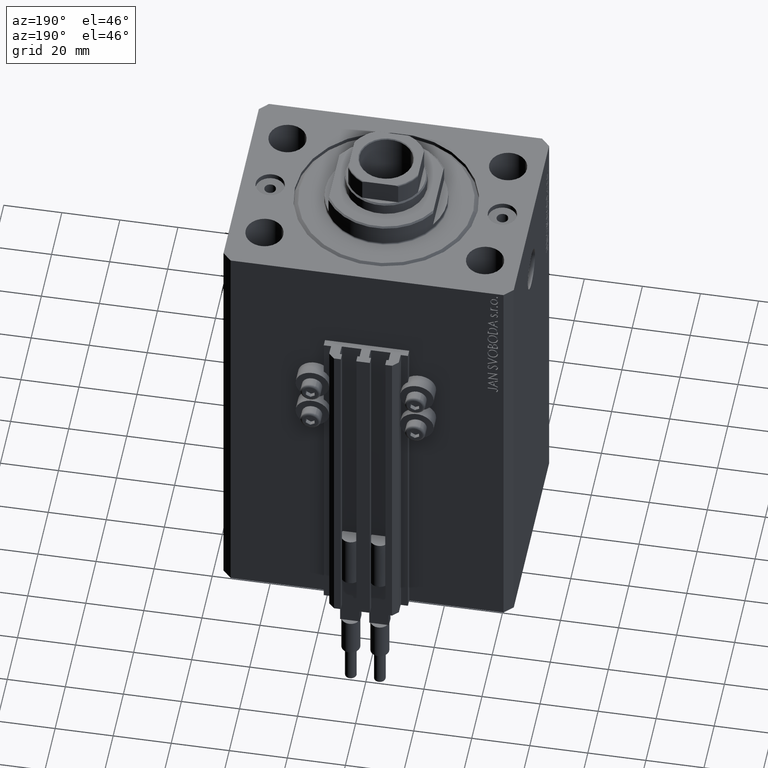
[diagram: clean part render]
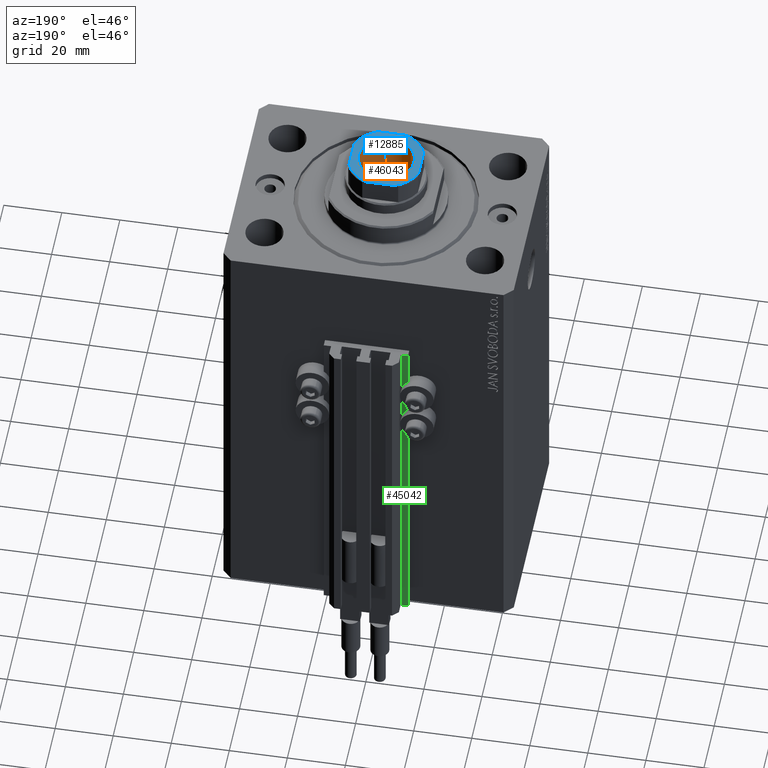
[diagram: same view with three faces highlighted in distinct colors, each labeled with its STEP entity id]
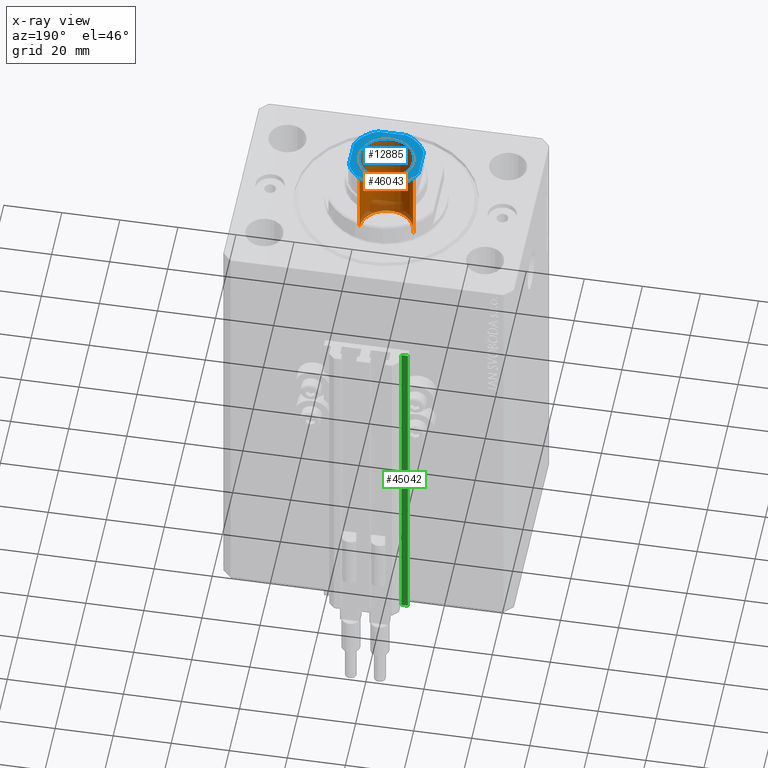
[diagram: x-ray of the same camera — body ghosted, the three highlighted faces saturated]
A machine part, auxiliary view with three faces highlighted in distinct colors.
The next image is the same camera in x-ray (body ghosted, the three faces saturated) — at least one of them is partly hidden behind the body in this view.
Their STEP definitions:

[orange] entity #46043 — the highlighted cylindrical surface (edge-blend (fillet) strip) has radius 9.25 mm, axis along (0, 0, 1).
#27 = AXIS2_PLACEMENT_3D ( 'NONE', #44641, #10618, #22744 ) ;
#244 = ORIENTED_EDGE ( 'NONE', *, *, #7207, .F. ) ;
#3332 = CARTESIAN_POINT ( 'NONE',  ( -9.249999999999996447, 1.132798289211301304E-15, 162.8000000000000114 ) ) ;
#4584 = CARTESIAN_POINT ( 'NONE',  ( 9.249999999999996447, 0.000000000000000000, 163.1000000000000227 ) ) ;
#5560 = CARTESIAN_POINT ( 'NONE',  ( -9.249999999999994671, 1.132798289211300909E-15, 128.1000000000000227 ) ) ;
#6228 = CIRCLE ( 'NONE', #27, 9.249999999999996447 ) ;
#6551 = CYLINDRICAL_SURFACE ( 'NONE', #8738, 9.249999999999996447 ) ;
#6917 = DIRECTION ( 'NONE',  ( -0.000000000000000000, -0.000000000000000000, 1.000000000000000000 ) ) ;
#7207 = EDGE_CURVE ( 'NONE', #13112, #16511, #29942, .T. ) ;
#8738 = AXIS2_PLACEMENT_3D ( 'NONE', #21338, #17706, #32513 ) ;
#9030 = AXIS2_PLACEMENT_3D ( 'NONE', #11026, #6917, #18791 ) ;
#9468 = EDGE_LOOP ( 'NONE', ( #244, #39256, #46170, #12335 ) ) ;
#10618 = DIRECTION ( 'NONE',  ( 0.000000000000000000, 0.000000000000000000, 1.000000000000000000 ) ) ;
#11017 = LINE ( 'NONE', #33833, #37038 ) ;
#11026 = CARTESIAN_POINT ( 'NONE',  ( 0.000000000000000000, 0.000000000000000000, 128.1000000000000227 ) ) ;
#11998 = DIRECTION ( 'NONE',  ( -0.000000000000000000, -0.000000000000000000, 1.000000000000000000 ) ) ;
#12335 = ORIENTED_EDGE ( 'NONE', *, *, #19412, .F. ) ;
#13112 = VERTEX_POINT ( 'NONE', #5560 ) ;
#13603 = EDGE_CURVE ( 'NONE', #13112, #39252, #11017, .T. ) ;
#16511 = VERTEX_POINT ( 'NONE', #22286 ) ;
#17283 = VERTEX_POINT ( 'NONE', #22056 ) ;
#17706 = DIRECTION ( 'NONE',  ( -0.000000000000000000, -0.000000000000000000, 1.000000000000000000 ) ) ;
#18791 = DIRECTION ( 'NONE',  ( 1.000000000000000000, 0.000000000000000000, 0.000000000000000000 ) ) ;
#19369 = DIRECTION ( 'NONE',  ( -0.000000000000000000, -0.000000000000000000, 1.000000000000000000 ) ) ;
#19412 = EDGE_CURVE ( 'NONE', #16511, #17283, #22996, .T. ) ;
#21338 = CARTESIAN_POINT ( 'NONE',  ( 0.000000000000000000, 0.000000000000000000, 163.1000000000000227 ) ) ;
#22056 = CARTESIAN_POINT ( 'NONE',  ( 9.249999999999996447, 0.000000000000000000, 162.8000000000000114 ) ) ;
#22286 = CARTESIAN_POINT ( 'NONE',  ( 9.249999999999994671, 0.000000000000000000, 128.1000000000000227 ) ) ;
#22744 = DIRECTION ( 'NONE',  ( 1.000000000000000000, 0.000000000000000000, 0.000000000000000000 ) ) ;
#22996 = LINE ( 'NONE', #4584, #43781 ) ;
#29942 = CIRCLE ( 'NONE', #9030, 9.249999999999994671 ) ;
#32513 = DIRECTION ( 'NONE',  ( 1.000000000000000000, 0.000000000000000000, 0.000000000000000000 ) ) ;
#33833 = CARTESIAN_POINT ( 'NONE',  ( -9.249999999999996447, 1.132798289211301304E-15, 163.1000000000000227 ) ) ;
#37038 = VECTOR ( 'NONE', #11998, 1000.000000000000000 ) ;
#37184 = EDGE_CURVE ( 'NONE', #39252, #17283, #6228, .T. ) ;
#39252 = VERTEX_POINT ( 'NONE', #3332 ) ;
#39256 = ORIENTED_EDGE ( 'NONE', *, *, #13603, .T. ) ;
#39814 = FACE_OUTER_BOUND ( 'NONE', #9468, .T. ) ;
#43781 = VECTOR ( 'NONE', #19369, 1000.000000000000000 ) ;
#44641 = CARTESIAN_POINT ( 'NONE',  ( 0.000000000000000000, 0.000000000000000000, 162.8000000000000114 ) ) ;
#46043 = ADVANCED_FACE ( 'NONE', ( #39814 ), #6551, .F. ) ;
#46170 = ORIENTED_EDGE ( 'NONE', *, *, #37184, .T. ) ;

[blue] entity #12885 — the highlighted planar face has unit normal (0, 0, 1).
#344 = CARTESIAN_POINT ( 'NONE',  ( -11.99999999999999822, -5.000000000000001776, 163.1000000000000227 ) ) ;
#875 = VERTEX_POINT ( 'NONE', #30502 ) ;
#1793 = CARTESIAN_POINT ( 'NONE',  ( 12.00000000000000178, 4.999999999999994671, 163.1000000000000227 ) ) ;
#1954 = EDGE_CURVE ( 'NONE', #6220, #22204, #29047, .T. ) ;
#2027 = CARTESIAN_POINT ( 'NONE',  ( -4.999999999999992895, -12.00000000000000178, 163.1000000000000227 ) ) ;
#2180 = CARTESIAN_POINT ( 'NONE',  ( 5.000000000000002665, 12.00000000000000000, 163.1000000000000227 ) ) ;
#2270 = DIRECTION ( 'NONE',  ( -0.000000000000000000, 0.000000000000000000, 1.000000000000000000 ) ) ;
#2748 = CARTESIAN_POINT ( 'NONE',  ( 0.000000000000000000, 0.000000000000000000, 163.1000000000000227 ) ) ;
#3227 = DIRECTION ( 'NONE',  ( 1.000000000000000000, 0.000000000000000000, 0.000000000000000000 ) ) ;
#3229 = VERTEX_POINT ( 'NONE', #344 ) ;
#3717 = AXIS2_PLACEMENT_3D ( 'NONE', #3871, #33476, #39811 ) ;
#3871 = CARTESIAN_POINT ( 'NONE',  ( 0.000000000000000000, 0.000000000000000000, 163.1000000000000227 ) ) ;
#4373 = EDGE_CURVE ( 'NONE', #22204, #46002, #14965, .T. ) ;
#4736 = LINE ( 'NONE', #8368, #28020 ) ;
#4921 = DIRECTION ( 'NONE',  ( 1.000000000000000000, 7.228014483236695816E-17, 0.000000000000000000 ) ) ;
#5148 = CARTESIAN_POINT ( 'NONE',  ( -11.99999999999999645, -12.00000000000000178, 163.1000000000000227 ) ) ;
#5667 = LINE ( 'NONE', #43299, #38973 ) ;
#6220 = VERTEX_POINT ( 'NONE', #1793 ) ;
#7085 = VECTOR ( 'NONE', #4921, 1000.000000000000000 ) ;
#7722 = VERTEX_POINT ( 'NONE', #16310 ) ;
#8368 = CARTESIAN_POINT ( 'NONE',  ( 12.00000000000000000, 12.00000000000000000, 163.1000000000000227 ) ) ;
#10826 = VERTEX_POINT ( 'NONE', #38123 ) ;
#11138 = FACE_OUTER_BOUND ( 'NONE', #44954, .T. ) ;
#11364 = ORIENTED_EDGE ( 'NONE', *, *, #47880, .T. ) ;
#11600 = CARTESIAN_POINT ( 'NONE',  ( 0.000000000000000000, 0.000000000000000000, 163.1000000000000227 ) ) ;
#11890 = CARTESIAN_POINT ( 'NONE',  ( 12.00000000000000178, -4.999999999999990230, 163.1000000000000227 ) ) ;
#11976 = EDGE_CURVE ( 'NONE', #7722, #36209, #31680, .T. ) ;
#12491 = DIRECTION ( 'NONE',  ( 1.000000000000000000, 0.000000000000000000, 0.000000000000000000 ) ) ;
#12885 = ADVANCED_FACE ( 'NONE', ( #48072, #11138 ), #37113, .T. ) ;
#14279 = ORIENTED_EDGE ( 'NONE', *, *, #30498, .T. ) ;
#14612 = VERTEX_POINT ( 'NONE', #2027 ) ;
#14652 = EDGE_CURVE ( 'NONE', #3229, #14612, #25425, .T. ) ;
#14965 = LINE ( 'NONE', #22963, #39209 ) ;
#15142 = DIRECTION ( 'NONE',  ( -1.445602896647339163E-16, 1.000000000000000000, -0.000000000000000000 ) ) ;
#15484 = ORIENTED_EDGE ( 'NONE', *, *, #11976, .T. ) ;
#16310 = CARTESIAN_POINT ( 'NONE',  ( 4.999999999999993783, -12.00000000000000178, 163.1000000000000227 ) ) ;
#17106 = CARTESIAN_POINT ( 'NONE',  ( 0.000000000000000000, 0.000000000000000000, 163.1000000000000227 ) ) ;
#17919 = DIRECTION ( 'NONE',  ( 1.000000000000000000, 0.000000000000000000, 0.000000000000000000 ) ) ;
#20558 = ORIENTED_EDGE ( 'NONE', *, *, #4373, .T. ) ;
#20756 = ORIENTED_EDGE ( 'NONE', *, *, #34678, .T. ) ;
#20788 = AXIS2_PLACEMENT_3D ( 'NONE', #46245, #2270, #12491 ) ;
#21279 = AXIS2_PLACEMENT_3D ( 'NONE', #2748, #46726, #3227 ) ;
#21390 = DIRECTION ( 'NONE',  ( 7.228014483236695816E-17, -1.000000000000000000, 0.000000000000000000 ) ) ;
#22204 = VERTEX_POINT ( 'NONE', #2180 ) ;
#22425 = ORIENTED_EDGE ( 'NONE', *, *, #1954, .T. ) ;
#22963 = CARTESIAN_POINT ( 'NONE',  ( -11.99999999999999822, 11.99999999999999822, 163.1000000000000227 ) ) ;
#23095 = LINE ( 'NONE', #5148, #7085 ) ;
#24383 = CARTESIAN_POINT ( 'NONE',  ( 9.550000000000030909, 0.000000000000000000, 163.1000000000000227 ) ) ;
#24582 = AXIS2_PLACEMENT_3D ( 'NONE', #30112, #37890, #30356 ) ;
#24742 = EDGE_LOOP ( 'NONE', ( #14279, #20756 ) ) ;
#24981 = CARTESIAN_POINT ( 'NONE',  ( -5.000000000000001776, 11.99999999999999822, 163.1000000000000227 ) ) ;
#25425 = CIRCLE ( 'NONE', #20788, 13.00000000000000000 ) ;
#26774 = EDGE_CURVE ( 'NONE', #46002, #875, #30928, .T. ) ;
#27545 = DIRECTION ( 'NONE',  ( 1.000000000000000000, 0.000000000000000000, 0.000000000000000000 ) ) ;
#28020 = VECTOR ( 'NONE', #15142, 1000.000000000000000 ) ;
#29047 = CIRCLE ( 'NONE', #21279, 13.00000000000000000 ) ;
#29328 = ORIENTED_EDGE ( 'NONE', *, *, #44272, .T. ) ;
#29794 = ORIENTED_EDGE ( 'NONE', *, *, #40570, .T. ) ;
#30027 = AXIS2_PLACEMENT_3D ( 'NONE', #17106, #35804, #35324 ) ;
#30112 = CARTESIAN_POINT ( 'NONE',  ( 0.000000000000000000, 0.000000000000000000, 163.1000000000000227 ) ) ;
#30356 = DIRECTION ( 'NONE',  ( 1.000000000000000000, 0.000000000000000000, 0.000000000000000000 ) ) ;
#30498 = EDGE_CURVE ( 'NONE', #43855, #10826, #44022, .T. ) ;
#30502 = CARTESIAN_POINT ( 'NONE',  ( -11.99999999999999822, 5.000000000000000888, 163.1000000000000227 ) ) ;
#30928 = CIRCLE ( 'NONE', #43320, 13.00000000000000000 ) ;
#31680 = CIRCLE ( 'NONE', #24582, 13.00000000000000000 ) ;
#31888 = ORIENTED_EDGE ( 'NONE', *, *, #26774, .T. ) ;
#33476 = DIRECTION ( 'NONE',  ( -0.000000000000000000, 0.000000000000000000, 1.000000000000000000 ) ) ;
#34678 = EDGE_CURVE ( 'NONE', #10826, #43855, #39498, .T. ) ;
#35076 = CARTESIAN_POINT ( 'NONE',  ( 0.000000000000000000, 0.000000000000000000, 163.1000000000000227 ) ) ;
#35324 = DIRECTION ( 'NONE',  ( 1.000000000000000000, 0.000000000000000000, 0.000000000000000000 ) ) ;
#35625 = AXIS2_PLACEMENT_3D ( 'NONE', #35076, #46266, #27545 ) ;
#35804 = DIRECTION ( 'NONE',  ( 0.000000000000000000, -0.000000000000000000, -1.000000000000000000 ) ) ;
#36209 = VERTEX_POINT ( 'NONE', #11890 ) ;
#36377 = DIRECTION ( 'NONE',  ( -0.000000000000000000, 0.000000000000000000, 1.000000000000000000 ) ) ;
#37113 = PLANE ( 'NONE',  #3717 ) ;
#37789 = DIRECTION ( 'NONE',  ( -1.000000000000000000, -7.228014483236695816E-17, -0.000000000000000000 ) ) ;
#37890 = DIRECTION ( 'NONE',  ( -0.000000000000000000, 0.000000000000000000, 1.000000000000000000 ) ) ;
#38123 = CARTESIAN_POINT ( 'NONE',  ( -9.550000000000030909, 1.169537693185726108E-15, 163.1000000000000227 ) ) ;
#38973 = VECTOR ( 'NONE', #21390, 1000.000000000000000 ) ;
#39209 = VECTOR ( 'NONE', #37789, 1000.000000000000000 ) ;
#39498 = CIRCLE ( 'NONE', #35625, 9.550000000000030909 ) ;
#39811 = DIRECTION ( 'NONE',  ( 1.000000000000000000, 0.000000000000000000, 0.000000000000000000 ) ) ;
#40336 = ORIENTED_EDGE ( 'NONE', *, *, #14652, .T. ) ;
#40570 = EDGE_CURVE ( 'NONE', #36209, #6220, #4736, .T. ) ;
#43299 = CARTESIAN_POINT ( 'NONE',  ( -11.99999999999999822, 11.99999999999999822, 163.1000000000000227 ) ) ;
#43320 = AXIS2_PLACEMENT_3D ( 'NONE', #11600, #36377, #17919 ) ;
#43855 = VERTEX_POINT ( 'NONE', #24383 ) ;
#44022 = CIRCLE ( 'NONE', #30027, 9.550000000000030909 ) ;
#44272 = EDGE_CURVE ( 'NONE', #14612, #7722, #23095, .T. ) ;
#44954 = EDGE_LOOP ( 'NONE', ( #11364, #40336, #29328, #15484, #29794, #22425, #20558, #31888 ) ) ;
#46002 = VERTEX_POINT ( 'NONE', #24981 ) ;
#46245 = CARTESIAN_POINT ( 'NONE',  ( 0.000000000000000000, 0.000000000000000000, 163.1000000000000227 ) ) ;
#46266 = DIRECTION ( 'NONE',  ( 0.000000000000000000, -0.000000000000000000, -1.000000000000000000 ) ) ;
#46726 = DIRECTION ( 'NONE',  ( -0.000000000000000000, 0.000000000000000000, 1.000000000000000000 ) ) ;
#47880 = EDGE_CURVE ( 'NONE', #875, #3229, #5667, .T. ) ;
#48072 = FACE_BOUND ( 'NONE', #24742, .T. ) ;

[green] entity #45042 — the highlighted planar face has unit normal (0, 1, 0).
#908 = EDGE_CURVE ( 'NONE', #35266, #43202, #19816, .T. ) ;
#2189 = FACE_OUTER_BOUND ( 'NONE', #29203, .T. ) ;
#3975 = VECTOR ( 'NONE', #5430, 1000.000000000000000 ) ;
#5069 = ORIENTED_EDGE ( 'NONE', *, *, #44720, .F. ) ;
#5430 = DIRECTION ( 'NONE',  ( 0.000000000000000000, 0.000000000000000000, 1.000000000000000000 ) ) ;
#6128 = LINE ( 'NONE', #35260, #3975 ) ;
#7648 = LINE ( 'NONE', #12010, #42820 ) ;
#8680 = VERTEX_POINT ( 'NONE', #29617 ) ;
#10126 = CARTESIAN_POINT ( 'NONE',  ( -12.20000000000000107, 39.99999999999998579, -33.00000000000000000 ) ) ;
#12010 = CARTESIAN_POINT ( 'NONE',  ( -12.20000000000000107, 39.99999999999998579, -155.0000000000000000 ) ) ;
#12057 = DIRECTION ( 'NONE',  ( 0.000000000000000000, 0.000000000000000000, 1.000000000000000000 ) ) ;
#12410 = ORIENTED_EDGE ( 'NONE', *, *, #41426, .T. ) ;
#13574 = DIRECTION ( 'NONE',  ( -1.000000000000000000, 3.016910393003143253E-15, 0.000000000000000000 ) ) ;
#16605 = ORIENTED_EDGE ( 'NONE', *, *, #39808, .F. ) ;
#17203 = AXIS2_PLACEMENT_3D ( 'NONE', #43232, #42289, #13574 ) ;
#19816 = LINE ( 'NONE', #34631, #32881 ) ;
#22434 = DIRECTION ( 'NONE',  ( -1.000000000000000000, 3.016910393003142859E-15, 0.000000000000000000 ) ) ;
#28446 = CARTESIAN_POINT ( 'NONE',  ( -14.50000000000000000, 39.99999999999999289, -33.00000000000000000 ) ) ;
#29203 = EDGE_LOOP ( 'NONE', ( #16605, #5069, #12410, #41039 ) ) ;
#29617 = CARTESIAN_POINT ( 'NONE',  ( -12.20000000000000107, 39.99999999999998579, -155.0000000000000000 ) ) ;
#32881 = VECTOR ( 'NONE', #12057, 1000.000000000000000 ) ;
#34631 = CARTESIAN_POINT ( 'NONE',  ( -14.50000000000000000, 39.99999999999999289, -155.0000000000000000 ) ) ;
#35260 = CARTESIAN_POINT ( 'NONE',  ( -12.20000000000000107, 39.99999999999998579, -155.0000000000000000 ) ) ;
#35266 = VERTEX_POINT ( 'NONE', #43756 ) ;
#35458 = CARTESIAN_POINT ( 'NONE',  ( -12.20000000000000107, 39.99999999999998579, -33.00000000000000000 ) ) ;
#38090 = VECTOR ( 'NONE', #42536, 1000.000000000000000 ) ;
#39808 = EDGE_CURVE ( 'NONE', #45386, #43202, #42301, .T. ) ;
#41039 = ORIENTED_EDGE ( 'NONE', *, *, #908, .T. ) ;
#41426 = EDGE_CURVE ( 'NONE', #8680, #35266, #7648, .T. ) ;
#42289 = DIRECTION ( 'NONE',  ( 3.016910393003143253E-15, 1.000000000000000000, -0.000000000000000000 ) ) ;
#42301 = LINE ( 'NONE', #35458, #38090 ) ;
#42536 = DIRECTION ( 'NONE',  ( -1.000000000000000000, 3.016910393003142859E-15, 0.000000000000000000 ) ) ;
#42820 = VECTOR ( 'NONE', #22434, 1000.000000000000000 ) ;
#43202 = VERTEX_POINT ( 'NONE', #28446 ) ;
#43232 = CARTESIAN_POINT ( 'NONE',  ( -12.20000000000000107, 39.99999999999998579, -155.0000000000000000 ) ) ;
#43756 = CARTESIAN_POINT ( 'NONE',  ( -14.50000000000000000, 39.99999999999999289, -155.0000000000000000 ) ) ;
#44720 = EDGE_CURVE ( 'NONE', #8680, #45386, #6128, .T. ) ;
#45042 = ADVANCED_FACE ( 'NONE', ( #2189 ), #45941, .T. ) ;
#45386 = VERTEX_POINT ( 'NONE', #10126 ) ;
#45941 = PLANE ( 'NONE',  #17203 ) ;